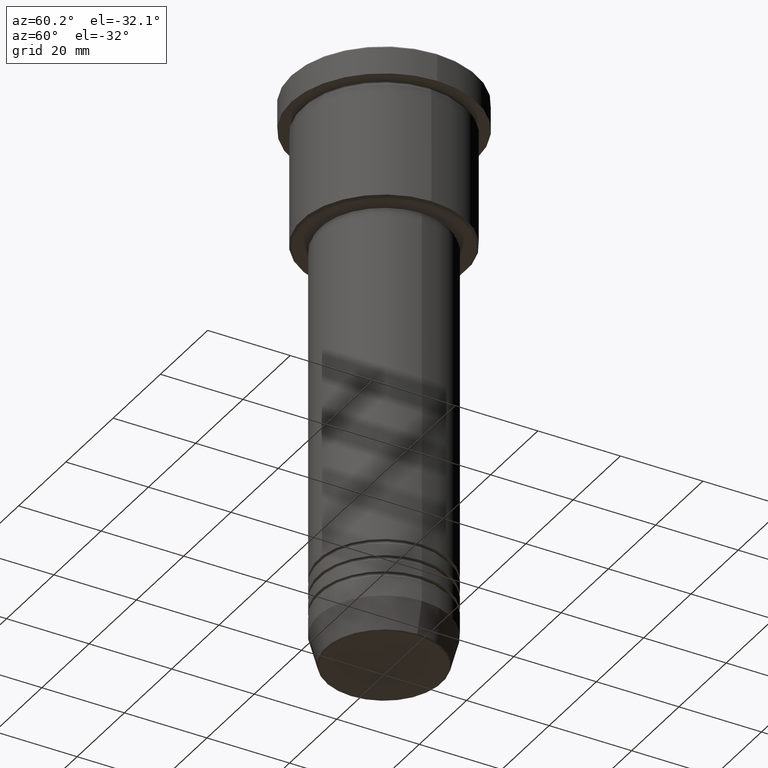
[diagram: clean part render]
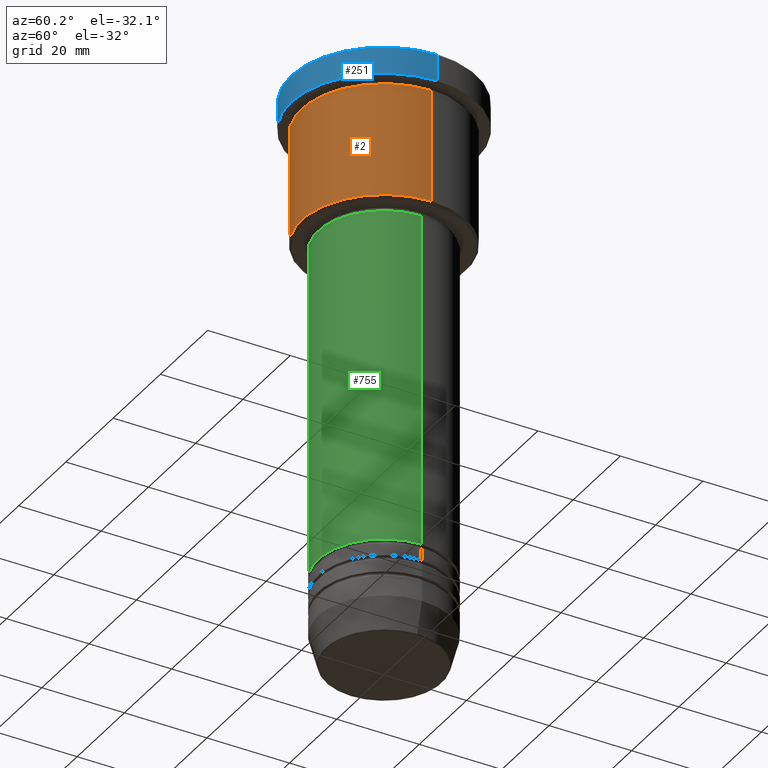
[diagram: same view with three faces highlighted in distinct colors, each labeled with its STEP entity id]
A machine part, auxiliary view with three faces highlighted in distinct colors.
Their STEP definitions:

[orange] entity #2 — the highlighted cylindrical surface (partial cylindrical patch) has radius 20 mm, axis along (-0, -0, 1).
#2 = ADVANCED_FACE ( 'NONE', ( #40 ), #765, .T. ) ;
#40 = FACE_OUTER_BOUND ( 'NONE', #1124, .T. ) ;
#124 = CARTESIAN_POINT ( 'NONE',  ( 0.000000000000000000, 0.000000000000000000, -7.999999999999994671 ) ) ;
#134 = EDGE_CURVE ( 'NONE', #1054, #906, #572, .T. ) ;
#151 = CARTESIAN_POINT ( 'NONE',  ( 20.00000000000000000, 0.000000000000000000, -7.999999999999994671 ) ) ;
#155 = CIRCLE ( 'NONE', #357, 20.00000000000000000 ) ;
#202 = ORIENTED_EDGE ( 'NONE', *, *, #617, .T. ) ;
#275 = CARTESIAN_POINT ( 'NONE',  ( -20.00000000000000000, 2.449293598294706513E-15, -7.999999999999994671 ) ) ;
#289 = DIRECTION ( 'NONE',  ( -0.000000000000000000, -0.000000000000000000, 1.000000000000000000 ) ) ;
#306 = CARTESIAN_POINT ( 'NONE',  ( 0.000000000000000000, 0.000000000000000000, 0.000000000000000000 ) ) ;
#333 = ORIENTED_EDGE ( 'NONE', *, *, #864, .F. ) ;
#357 = AXIS2_PLACEMENT_3D ( 'NONE', #124, #289, #444 ) ;
#388 = CARTESIAN_POINT ( 'NONE',  ( 20.00000000000000355, 0.000000000000000000, -35.49999999999997868 ) ) ;
#442 = CARTESIAN_POINT ( 'NONE',  ( 0.000000000000000000, 0.000000000000000000, -35.49999999999997868 ) ) ;
#444 = DIRECTION ( 'NONE',  ( 1.000000000000000000, 0.000000000000000000, 0.000000000000000000 ) ) ;
#451 = DIRECTION ( 'NONE',  ( -0.000000000000000000, -0.000000000000000000, 1.000000000000000000 ) ) ;
#481 = DIRECTION ( 'NONE',  ( -1.000000000000000000, 0.000000000000000000, 0.000000000000000000 ) ) ;
#488 = DIRECTION ( 'NONE',  ( -0.000000000000000000, -0.000000000000000000, 1.000000000000000000 ) ) ;
#538 = VECTOR ( 'NONE', #451, 1000.000000000000000 ) ;
#572 = LINE ( 'NONE', #940, #810 ) ;
#613 = CARTESIAN_POINT ( 'NONE',  ( 20.00000000000000355, 0.000000000000000000, 0.000000000000000000 ) ) ;
#617 = EDGE_CURVE ( 'NONE', #1054, #707, #951, .T. ) ;
#672 = DIRECTION ( 'NONE',  ( -0.000000000000000000, -0.000000000000000000, 1.000000000000000000 ) ) ;
#696 = AXIS2_PLACEMENT_3D ( 'NONE', #442, #927, #481 ) ;
#707 = VERTEX_POINT ( 'NONE', #388 ) ;
#716 = ORIENTED_EDGE ( 'NONE', *, *, #778, .T. ) ;
#742 = ORIENTED_EDGE ( 'NONE', *, *, #134, .F. ) ;
#765 = CYLINDRICAL_SURFACE ( 'NONE', #1117, 20.00000000000000355 ) ;
#778 = EDGE_CURVE ( 'NONE', #707, #809, #1070, .T. ) ;
#809 = VERTEX_POINT ( 'NONE', #151 ) ;
#810 = VECTOR ( 'NONE', #488, 1000.000000000000000 ) ;
#856 = CARTESIAN_POINT ( 'NONE',  ( -20.00000000000000355, 2.449293598294706907E-15, -35.49999999999997868 ) ) ;
#864 = EDGE_CURVE ( 'NONE', #906, #809, #155, .T. ) ;
#906 = VERTEX_POINT ( 'NONE', #275 ) ;
#927 = DIRECTION ( 'NONE',  ( -0.000000000000000000, -0.000000000000000000, 1.000000000000000000 ) ) ;
#940 = CARTESIAN_POINT ( 'NONE',  ( -20.00000000000000355, 2.449293598294706907E-15, 0.000000000000000000 ) ) ;
#951 = CIRCLE ( 'NONE', #696, 20.00000000000000355 ) ;
#1038 = DIRECTION ( 'NONE',  ( 1.000000000000000000, 0.000000000000000000, 0.000000000000000000 ) ) ;
#1054 = VERTEX_POINT ( 'NONE', #856 ) ;
#1070 = LINE ( 'NONE', #613, #538 ) ;
#1117 = AXIS2_PLACEMENT_3D ( 'NONE', #306, #672, #1038 ) ;
#1124 = EDGE_LOOP ( 'NONE', ( #742, #202, #716, #333 ) ) ;

[blue] entity #251 — the highlighted cylindrical surface (partial cylindrical patch) has radius 22.5 mm, axis along (-0, -0, 1).
#37 = AXIS2_PLACEMENT_3D ( 'NONE', #762, #1126, #583 ) ;
#69 = DIRECTION ( 'NONE',  ( -0.000000000000000000, -0.000000000000000000, 1.000000000000000000 ) ) ;
#73 = CARTESIAN_POINT ( 'NONE',  ( 0.000000000000000000, 0.000000000000000000, 0.000000000000000000 ) ) ;
#78 = CYLINDRICAL_SURFACE ( 'NONE', #990, 22.50000000000000000 ) ;
#106 = DIRECTION ( 'NONE',  ( 1.000000000000000000, 0.000000000000000000, 0.000000000000000000 ) ) ;
#113 = CIRCLE ( 'NONE', #156, 22.50000000000000000 ) ;
#156 = AXIS2_PLACEMENT_3D ( 'NONE', #465, #232, #387 ) ;
#183 = EDGE_LOOP ( 'NONE', ( #836, #272, #686, #748 ) ) ;
#212 = LINE ( 'NONE', #570, #1120 ) ;
#232 = DIRECTION ( 'NONE',  ( 0.000000000000000000, 0.000000000000000000, -1.000000000000000000 ) ) ;
#251 = ADVANCED_FACE ( 'NONE', ( #332 ), #78, .T. ) ;
#253 = LINE ( 'NONE', #886, #372 ) ;
#272 = ORIENTED_EDGE ( 'NONE', *, *, #329, .T. ) ;
#329 = EDGE_CURVE ( 'NONE', #838, #966, #600, .T. ) ;
#332 = FACE_OUTER_BOUND ( 'NONE', #183, .T. ) ;
#372 = VECTOR ( 'NONE', #69, 1000.000000000000000 ) ;
#383 = CARTESIAN_POINT ( 'NONE',  ( -22.50000000000000000, 2.755455298081544778E-15, -6.999999999999995559 ) ) ;
#387 = DIRECTION ( 'NONE',  ( 1.000000000000000000, 0.000000000000000000, 0.000000000000000000 ) ) ;
#465 = CARTESIAN_POINT ( 'NONE',  ( 0.000000000000000000, 0.000000000000000000, -0.4999999999999657496 ) ) ;
#521 = EDGE_CURVE ( 'NONE', #838, #740, #253, .T. ) ;
#547 = DIRECTION ( 'NONE',  ( -0.000000000000000000, -0.000000000000000000, 1.000000000000000000 ) ) ;
#570 = CARTESIAN_POINT ( 'NONE',  ( 22.50000000000000000, 0.000000000000000000, 0.000000000000000000 ) ) ;
#583 = DIRECTION ( 'NONE',  ( 1.000000000000000000, 0.000000000000000000, 0.000000000000000000 ) ) ;
#600 = CIRCLE ( 'NONE', #37, 22.50000000000000000 ) ;
#642 = CARTESIAN_POINT ( 'NONE',  ( 22.50000000000000000, 0.000000000000000000, -0.4999999999999657496 ) ) ;
#651 = DIRECTION ( 'NONE',  ( -0.000000000000000000, -0.000000000000000000, 1.000000000000000000 ) ) ;
#680 = CARTESIAN_POINT ( 'NONE',  ( -22.50000000000000000, 2.755455298081544778E-15, -0.4999999999999657496 ) ) ;
#686 = ORIENTED_EDGE ( 'NONE', *, *, #944, .T. ) ;
#740 = VERTEX_POINT ( 'NONE', #680 ) ;
#748 = ORIENTED_EDGE ( 'NONE', *, *, #1028, .T. ) ;
#762 = CARTESIAN_POINT ( 'NONE',  ( 0.000000000000000000, 0.000000000000000000, -6.999999999999995559 ) ) ;
#813 = VERTEX_POINT ( 'NONE', #642 ) ;
#836 = ORIENTED_EDGE ( 'NONE', *, *, #521, .F. ) ;
#838 = VERTEX_POINT ( 'NONE', #383 ) ;
#886 = CARTESIAN_POINT ( 'NONE',  ( -22.50000000000000000, 2.755455298081544778E-15, 0.000000000000000000 ) ) ;
#944 = EDGE_CURVE ( 'NONE', #966, #813, #212, .T. ) ;
#966 = VERTEX_POINT ( 'NONE', #1017 ) ;
#990 = AXIS2_PLACEMENT_3D ( 'NONE', #73, #651, #106 ) ;
#1017 = CARTESIAN_POINT ( 'NONE',  ( 22.50000000000000000, 0.000000000000000000, -6.999999999999995559 ) ) ;
#1028 = EDGE_CURVE ( 'NONE', #813, #740, #113, .T. ) ;
#1120 = VECTOR ( 'NONE', #547, 1000.000000000000000 ) ;
#1126 = DIRECTION ( 'NONE',  ( -0.000000000000000000, -0.000000000000000000, 1.000000000000000000 ) ) ;

[green] entity #755 — the highlighted cylindrical surface (partial cylindrical patch) has radius 16 mm, axis along (-0, -0, 1).
#17 = CIRCLE ( 'NONE', #38, 16.00000000000000000 ) ;
#20 = CARTESIAN_POINT ( 'NONE',  ( 0.000000000000000000, 0.000000000000000000, -37.00000000000002842 ) ) ;
#24 = ORIENTED_EDGE ( 'NONE', *, *, #530, .F. ) ;
#38 = AXIS2_PLACEMENT_3D ( 'NONE', #407, #1132, #312 ) ;
#44 = VERTEX_POINT ( 'NONE', #284 ) ;
#50 = CARTESIAN_POINT ( 'NONE',  ( -16.00000000000000000, 1.959434878635765131E-15, 0.000000000000000000 ) ) ;
#80 = DIRECTION ( 'NONE',  ( -0.000000000000000000, -0.000000000000000000, 1.000000000000000000 ) ) ;
#148 = EDGE_CURVE ( 'NONE', #363, #804, #440, .T. ) ;
#157 = DIRECTION ( 'NONE',  ( -0.000000000000000000, -0.000000000000000000, 1.000000000000000000 ) ) ;
#188 = ORIENTED_EDGE ( 'NONE', *, *, #464, .T. ) ;
#239 = CARTESIAN_POINT ( 'NONE',  ( -16.00000000000000000, 1.959434878635765131E-15, -37.00000000000002842 ) ) ;
#284 = CARTESIAN_POINT ( 'NONE',  ( 16.00000000000000000, 0.000000000000000000, -118.5000000000000000 ) ) ;
#310 = DIRECTION ( 'NONE',  ( 1.000000000000000000, 0.000000000000000000, 0.000000000000000000 ) ) ;
#312 = DIRECTION ( 'NONE',  ( 1.000000000000000000, 0.000000000000000000, 0.000000000000000000 ) ) ;
#335 = VECTOR ( 'NONE', #350, 1000.000000000000000 ) ;
#344 = CARTESIAN_POINT ( 'NONE',  ( 0.000000000000000000, 0.000000000000000000, 0.000000000000000000 ) ) ;
#350 = DIRECTION ( 'NONE',  ( -0.000000000000000000, -0.000000000000000000, 1.000000000000000000 ) ) ;
#354 = CARTESIAN_POINT ( 'NONE',  ( -16.00000000000000000, 1.959434878635765131E-15, -118.5000000000000000 ) ) ;
#363 = VERTEX_POINT ( 'NONE', #354 ) ;
#379 = DIRECTION ( 'NONE',  ( 1.000000000000000000, 0.000000000000000000, 0.000000000000000000 ) ) ;
#407 = CARTESIAN_POINT ( 'NONE',  ( 0.000000000000000000, 0.000000000000000000, -118.5000000000000000 ) ) ;
#426 = DIRECTION ( 'NONE',  ( -0.000000000000000000, -0.000000000000000000, 1.000000000000000000 ) ) ;
#440 = LINE ( 'NONE', #50, #335 ) ;
#457 = VECTOR ( 'NONE', #426, 1000.000000000000000 ) ;
#464 = EDGE_CURVE ( 'NONE', #44, #1094, #1049, .T. ) ;
#504 = CARTESIAN_POINT ( 'NONE',  ( 16.00000000000000000, 0.000000000000000000, -37.00000000000002842 ) ) ;
#530 = EDGE_CURVE ( 'NONE', #804, #1094, #1137, .T. ) ;
#624 = AXIS2_PLACEMENT_3D ( 'NONE', #20, #80, #379 ) ;
#698 = ORIENTED_EDGE ( 'NONE', *, *, #148, .F. ) ;
#734 = EDGE_CURVE ( 'NONE', #363, #44, #17, .T. ) ;
#755 = ADVANCED_FACE ( 'NONE', ( #1163 ), #975, .T. ) ;
#804 = VERTEX_POINT ( 'NONE', #239 ) ;
#975 = CYLINDRICAL_SURFACE ( 'NONE', #1159, 16.00000000000000000 ) ;
#982 = CARTESIAN_POINT ( 'NONE',  ( 16.00000000000000000, 0.000000000000000000, 0.000000000000000000 ) ) ;
#1049 = LINE ( 'NONE', #982, #457 ) ;
#1077 = ORIENTED_EDGE ( 'NONE', *, *, #734, .T. ) ;
#1094 = VERTEX_POINT ( 'NONE', #504 ) ;
#1103 = EDGE_LOOP ( 'NONE', ( #698, #1077, #188, #24 ) ) ;
#1132 = DIRECTION ( 'NONE',  ( -0.000000000000000000, -0.000000000000000000, 1.000000000000000000 ) ) ;
#1137 = CIRCLE ( 'NONE', #624, 16.00000000000000000 ) ;
#1159 = AXIS2_PLACEMENT_3D ( 'NONE', #344, #157, #310 ) ;
#1163 = FACE_OUTER_BOUND ( 'NONE', #1103, .T. ) ;